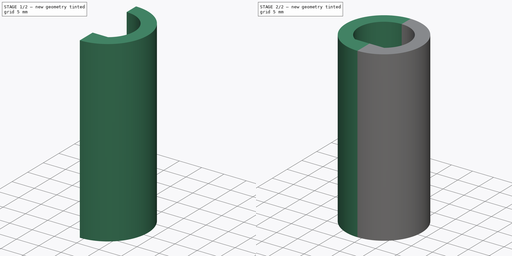
[diagram: build sequence overview — one tinted view per stage of 2, left to right]
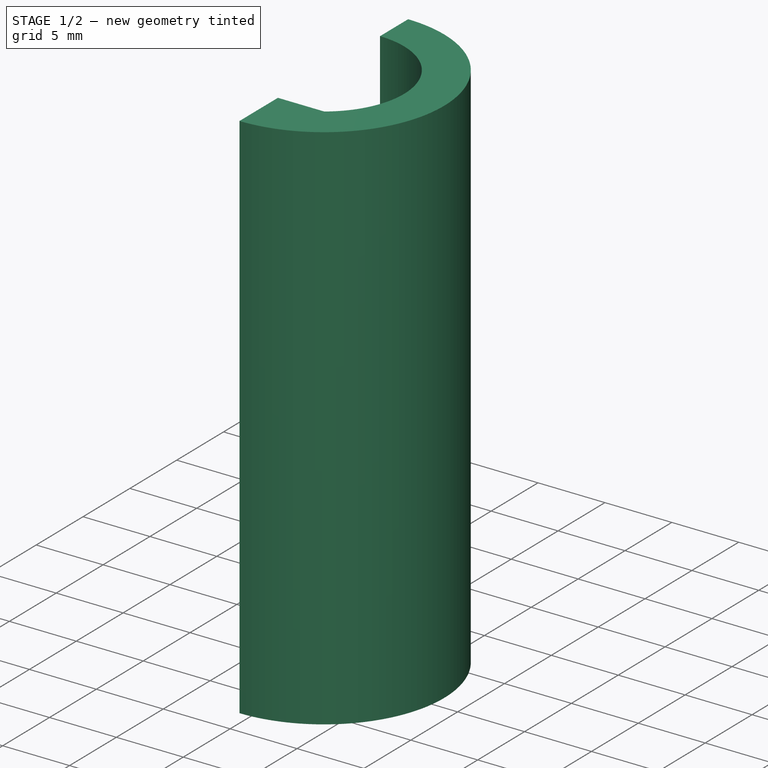
[diagram: stage 1 of 2 — iso view after this stage's code; geometry added in this stage tinted green]
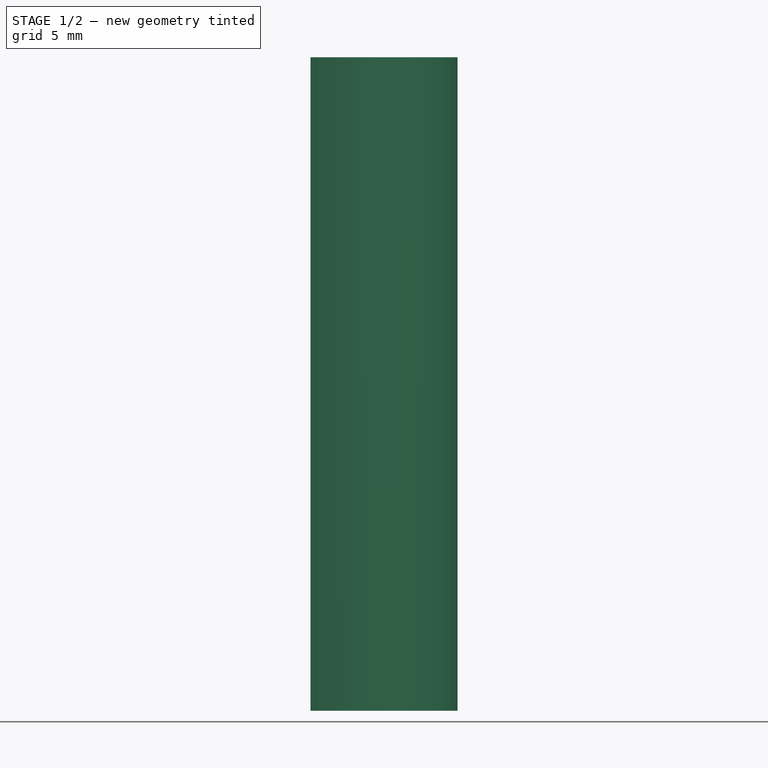
[diagram: stage 1 of 2 — front view after this stage's code; geometry added in this stage tinted green]
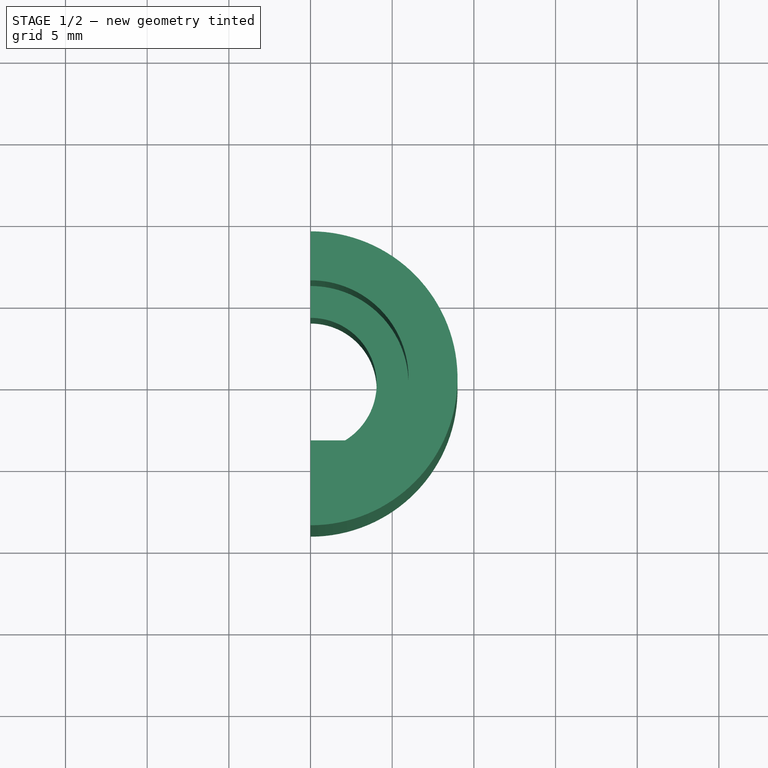
[diagram: stage 1 of 2 — top view after this stage's code; geometry added in this stage tinted green]
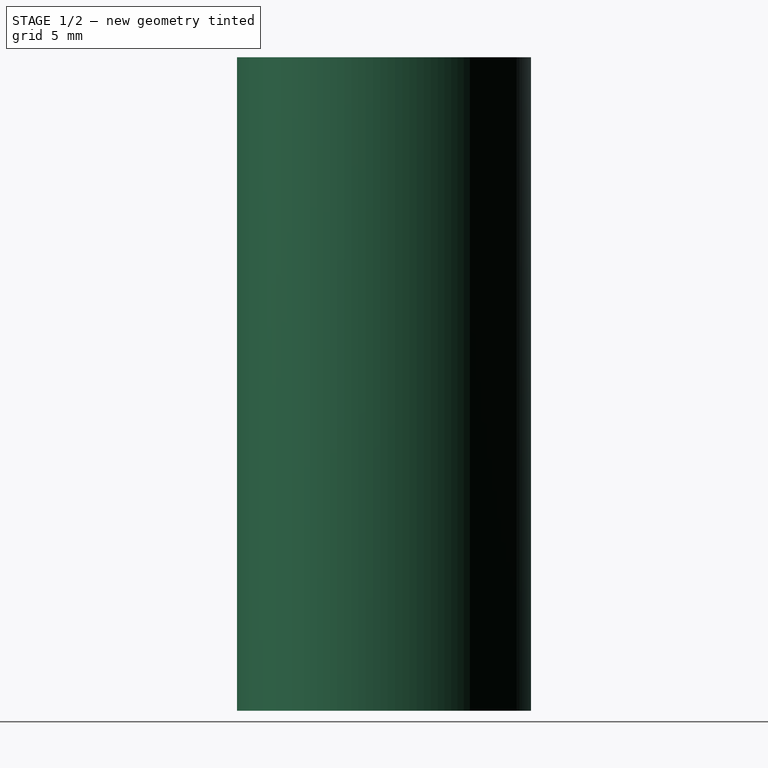
[diagram: stage 1 of 2 — right view after this stage's code; geometry added in this stage tinted green]
FCSTD DOCUMENT  (FreeCAD 0.20R29410 (Git))
Label: stepper_to_roll
License: All rights reserved
LicenseURL: http://en.wikipedia.org/wiki/All_rights_reserved
objects: Sketcher::SketchObject×3, PartDesign::Pad×2, PartDesign::Mirrored×1, PartDesign::Body×1
note: 9 computed .brp shape members not serialized (recipe doc carries the construction recipe); baked Part::Feature solids carry a one-line shape summary decoded from their .brp

FEATURE [Sketcher::SketchObject] Sketch
  FullyConstrained = true
  MapMode = 5
  Placement = pos=(0,0,0) rot=(1,0,0;1.5708rad)
  Support = -> [XZ_Plane]
FEATURE [Sketcher::SketchObject] Sketch001
  FullyConstrained = true
  MapMode = 5
  Support = -> [XY_Plane]
  sketch-geometry (6):
    g0: ArcOfCircle CenterX=0 CenterY=0 CenterZ=0 NormalX=0 NormalY=0 NormalZ=1 AngleXU=0 Radius=6 StartAngle=5.32757 EndAngle=7.85398
    g1: LineSegment StartX=3.46266 StartY=-4.9 StartZ=0 EndX=0 EndY=-4.9 EndZ=0
    g2: LineSegment StartX=0 StartY=-4.9 StartZ=0 EndX=0 EndY=6 EndZ=0
    g3: ArcOfCircle CenterX=0 CenterY=0 CenterZ=0 NormalX=0 NormalY=0 NormalZ=1 AngleXU=0 Radius=9 StartAngle=4.71239 EndAngle=7.85398
    g4: LineSegment StartX=0 StartY=6 StartZ=0 EndX=2.8e-15 EndY=9 EndZ=0
    g5: LineSegment StartX=0 StartY=-4.9 StartZ=0 EndX=0 EndY=-9 EndZ=0
  constraints (17):
    c: Coincident(g0,g-1)
    c: PointOnObject(g0,g-2)
    c: Coincident(g1,g0)
    c: PointOnObject(g1,g-2)
    c: Horizontal(g1)
    c: Coincident(g2,g1)
    c: Coincident(g2,g0)
    c: DistanceY(g2,g2) = 10.9
    c: Diameter(g0) = 12
    c: Coincident(g3,g0)
    c: PointOnObject(g3,g-2)
    c: PointOnObject(g3,g-2)
    c: Coincident(g4,g0)
    c: Coincident(g4,g3)
    c: Coincident(g5,g1)
    c: Coincident(g5,g3)
    c: DistanceY(g4,g4) = 3
FEATURE [Sketcher::SketchObject] Sketch002
  FullyConstrained = true
  MapMode = 5
  Support = -> [XY_Plane]
  expr: Constraints[16] = Sketch001.Constraints[7]
  expr: Constraints[17] = Sketch001.Constraints[8]
  expr: Constraints[25] = Sketch001.Constraints[16]
  expr: Constraints[33] = Sketch001.Constraints[7]
  expr: Constraints[34] = Sketch001.Constraints[8]
  expr: Constraints[42] = Sketch001.Constraints[16]
  sketch-geometry (17):
    g0: ArcOfCircle CenterX=0 CenterY=0 CenterZ=0 NormalX=0 NormalY=0 NormalZ=1 AngleXU=0 Radius=4.05 StartAngle=5.26367 EndAngle=7.85398
    g1: LineSegment StartX=2.12132 StartY=-3.45 StartZ=0 EndX=0 EndY=-3.45 EndZ=0
    g2: LineSegment StartX=0 StartY=-3.45 StartZ=0 EndX=1.2e-15 EndY=4.05 EndZ=0
    g3: ArcOfCircle CenterX=0 CenterY=0 CenterZ=0 NormalX=0 NormalY=0 NormalZ=1 AngleXU=0 Radius=6 StartAngle=5.32757 EndAngle=7.85398
    g4: LineSegment StartX=3.46266 StartY=-4.9 StartZ=0 EndX=0 EndY=-4.9 EndZ=0
    g5: LineSegment StartX=0 StartY=-4.9 StartZ=0 EndX=1.8e-15 EndY=6 EndZ=0
    g6: ArcOfCircle CenterX=0 CenterY=0 CenterZ=0 NormalX=0 NormalY=0 NormalZ=1 AngleXU=0 Radius=9 StartAngle=4.71239 EndAngle=7.85398
    g7: LineSegment StartX=1.8e-15 StartY=6 StartZ=0 EndX=2.8e-15 EndY=9 EndZ=0
    g8: LineSegment StartX=0 StartY=-4.9 StartZ=0 EndX=-1.7e-15 EndY=-9 EndZ=0
    g9: ArcOfCircle CenterX=0 CenterY=0 CenterZ=0 NormalX=0 NormalY=0 NormalZ=1 AngleXU=0 Radius=6 StartAngle=5.32757 EndAngle=7.85398
    g10: LineSegment StartX=3.46266 StartY=-4.9 StartZ=0 EndX=0 EndY=-4.9 EndZ=0
    g11: LineSegment StartX=0 StartY=-4.9 StartZ=0 EndX=1.8e-15 EndY=6 EndZ=0
    g12: ArcOfCircle CenterX=0 CenterY=0 CenterZ=0 NormalX=0 NormalY=0 NormalZ=1 AngleXU=0 Radius=9 StartAngle=4.71239 EndAngle=7.85398
    g13: LineSegment StartX=1.8e-15 StartY=6 StartZ=0 EndX=2.8e-15 EndY=9 EndZ=0
    g14: LineSegment StartX=0 StartY=-4.9 StartZ=0 EndX=-1.7e-15 EndY=-9 EndZ=0
    g15: LineSegment StartX=0 StartY=-3.45 StartZ=0 EndX=-1.7e-15 EndY=-9 EndZ=0
    g16: LineSegment StartX=1.2e-15 StartY=4.05 StartZ=0 EndX=2.8e-15 EndY=9 EndZ=0
  constraints (47):
    c: Coincident(g0,g-1)
    c: PointOnObject(g0,g-2)
    c: Coincident(g1,g0)
    c: PointOnObject(g1,g-2)
    c: Horizontal(g1)
    c: Coincident(g2,g1)
    c: Coincident(g2,g0)
    c: Diameter(g0) = 8.1
    c: DistanceY(g2,g2) = 7.5
    c: Coincident(g3,g-1)
    c: PointOnObject(g3,g-2)
    c: Coincident(g4,g3)
    c: PointOnObject(g4,g-2)
    c: Horizontal(g4)
    c: Coincident(g5,g4)
    c: Coincident(g5,g3)
    c: DistanceY(g5,g5) = 10.9
    c: Diameter(g3) = 12
    c: Coincident(g6,g3)
    c: PointOnObject(g6,g-2)
    c: PointOnObject(g6,g-2)
    c: Coincident(g7,g3)
    c: Coincident(g7,g6)
    c: Coincident(g8,g4)
    c: Coincident(g8,g6)
    c: DistanceY(g7,g7) = 3
    c: Coincident(g9,g-1)
    c: PointOnObject(g9,g-2)
    c: Coincident(g10,g9)
    c: PointOnObject(g10,g-2)
    c: Horizontal(g10)
    c: Coincident(g11,g10)
    c: Coincident(g11,g9)
    c: DistanceY(g11,g11) = 10.9
    c: Diameter(g9) = 12
    c: Coincident(g12,g9)
    c: PointOnObject(g12,g-2)
    c: PointOnObject(g12,g-2)
    c: Coincident(g13,g9)
    c: Coincident(g13,g12)
    c: Coincident(g14,g10)
    c: Coincident(g14,g12)
    c: DistanceY(g13,g13) = 3
    c: Coincident(g15,g6)
    c: Coincident(g16,g0)
    c: Coincident(g16,g6)
    c: Coincident(g15,g1)
FEATURE [PartDesign::Pad] Pad
  Direction = (0,0,1)
  Length = 20
  Length2 = 10
  Profile = -> Sketch001
  ReferenceAxis = -> Sketch001 [N_Axis]
  Type = 0
FEATURE [PartDesign::Pad] Pad001
  BaseFeature = -> Pad
  Direction = (0,0,1)
  Length = 20
  Length2 = 10
  Profile = -> Sketch002
  ReferenceAxis = -> Sketch002 [N_Axis]
  Reversed = true
  Type = 0
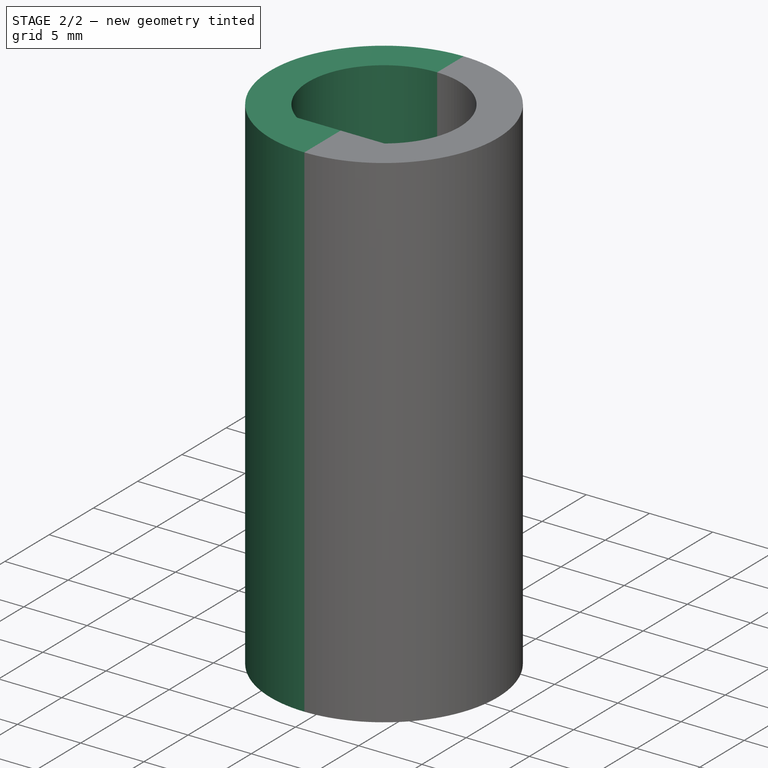
[diagram: stage 2 of 2 — iso view after this stage's code; geometry added in this stage tinted green]
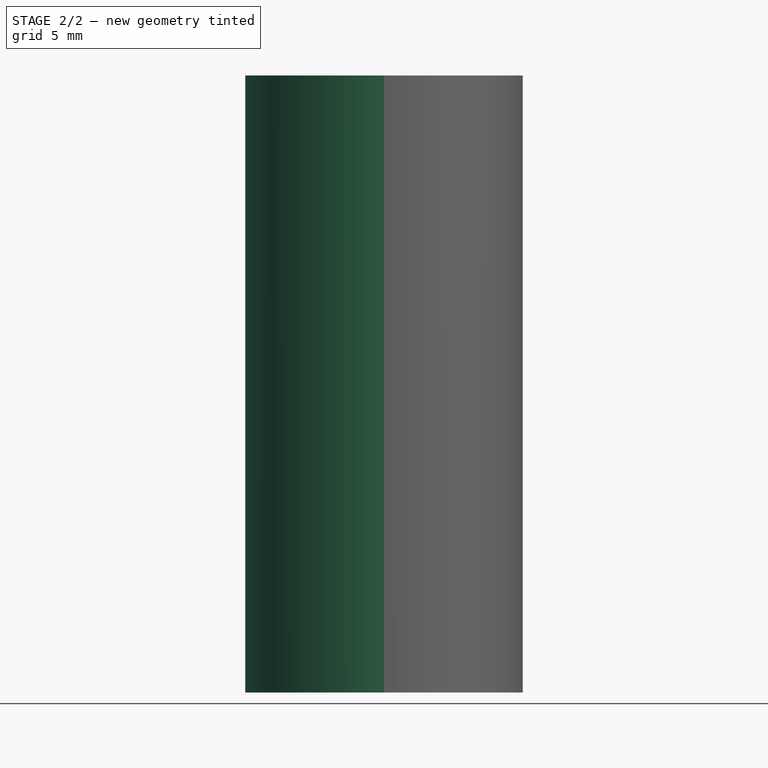
[diagram: stage 2 of 2 — front view after this stage's code; geometry added in this stage tinted green]
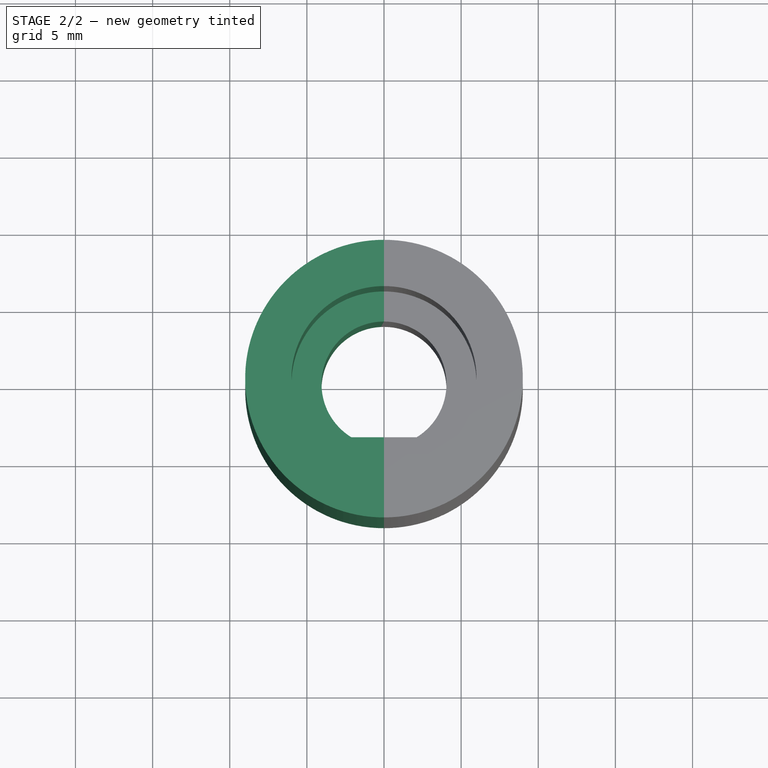
[diagram: stage 2 of 2 — top view after this stage's code; geometry added in this stage tinted green]
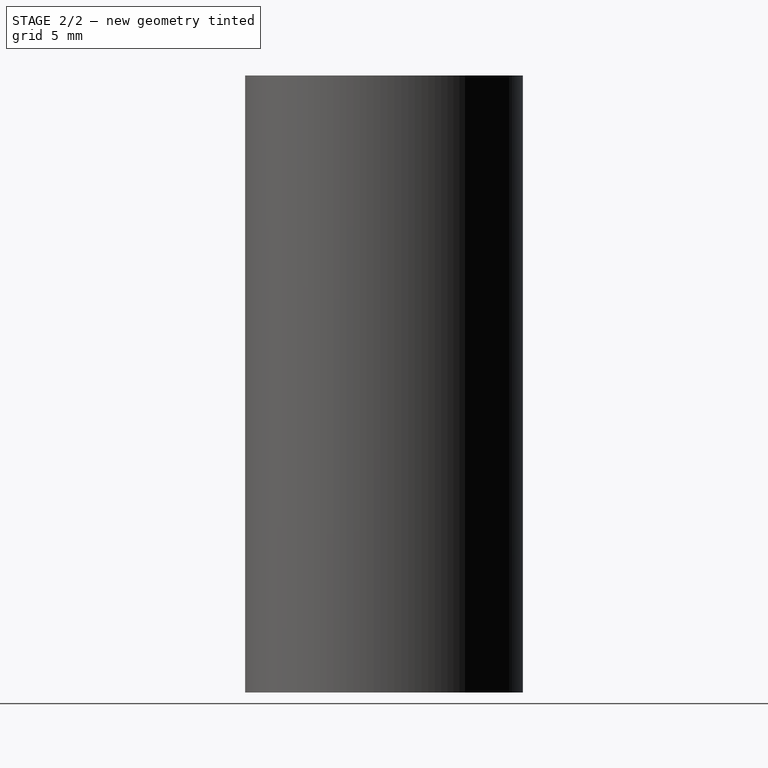
[diagram: stage 2 of 2 — right view after this stage's code; geometry added in this stage tinted green]
FEATURE [PartDesign::Mirrored] Mirrored
  BaseFeature = -> Pad001
  MirrorPlane = -> Sketch001 [V_Axis]
  Originals = -> [Pad,Pad001]
FEATURE [PartDesign::Body] Body
  Group = -> [Sketch,Sketch001,Sketch002,Pad,Pad001,Mirrored]
  Origin = -> Origin
  Tip = -> Mirrored
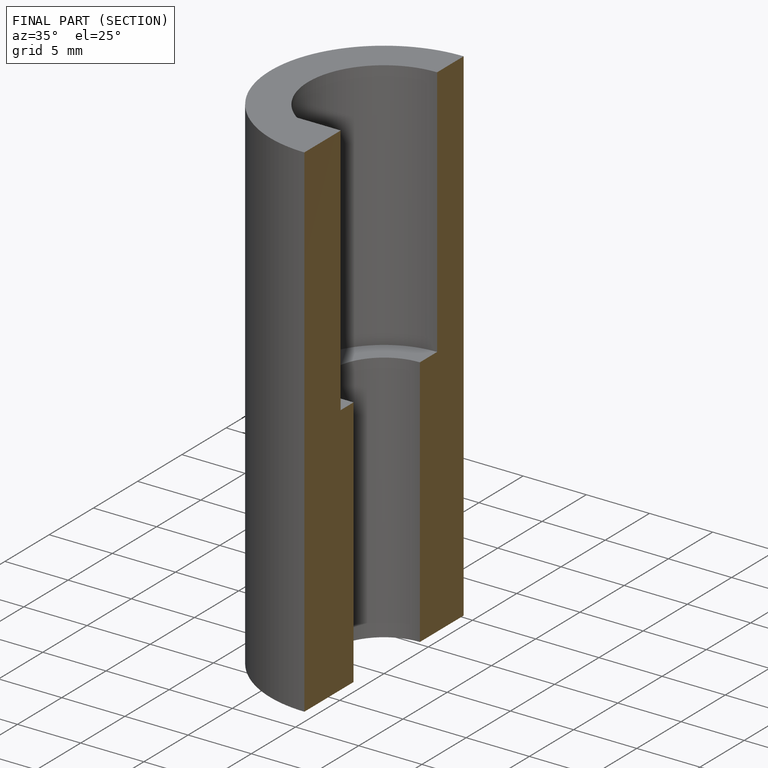
[diagram: finished part — half-section view (interior)]
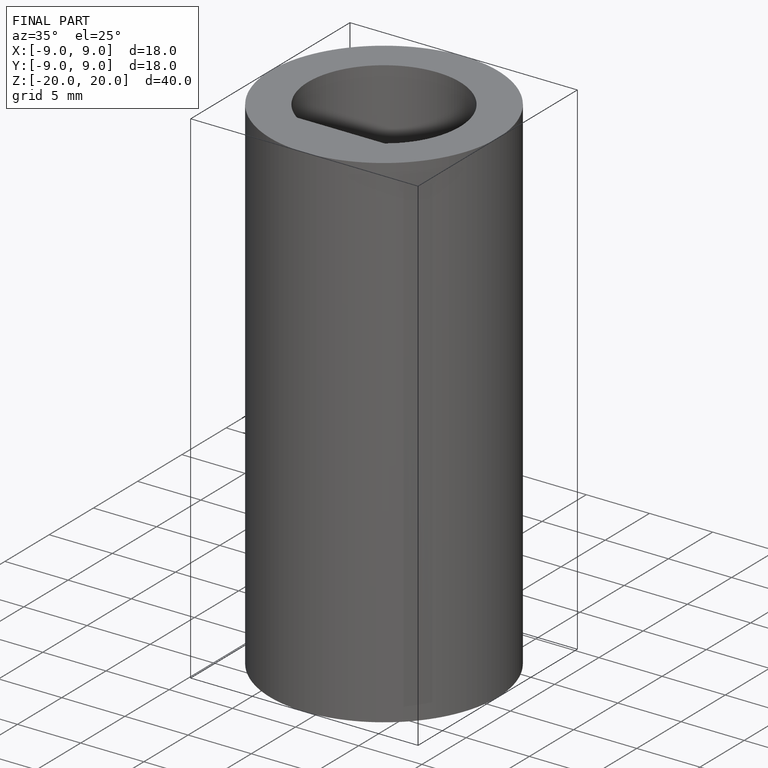
[diagram: finished part — iso view with bounding-box wireframe]
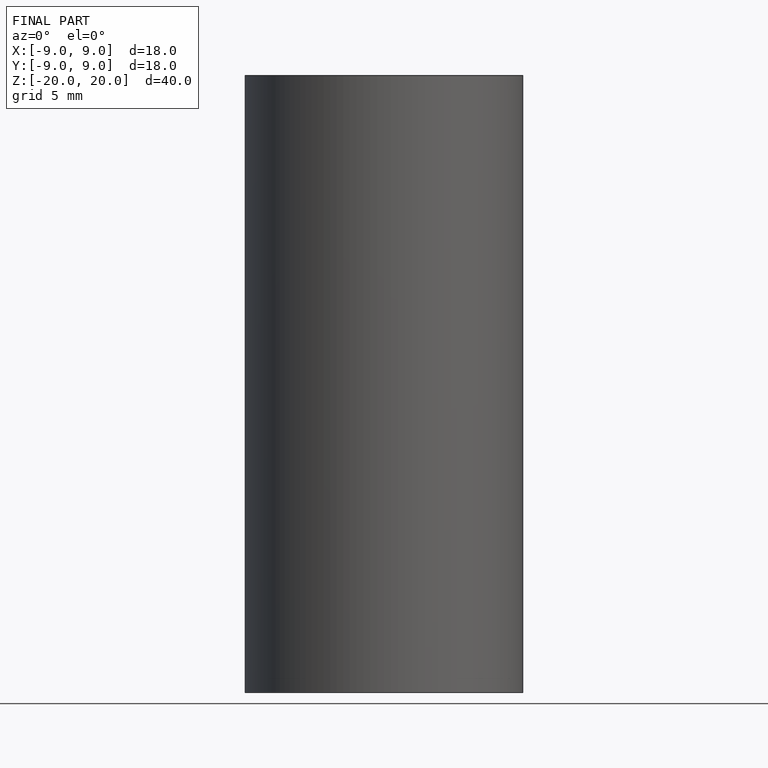
[diagram: finished part — front view with bounding-box wireframe]
